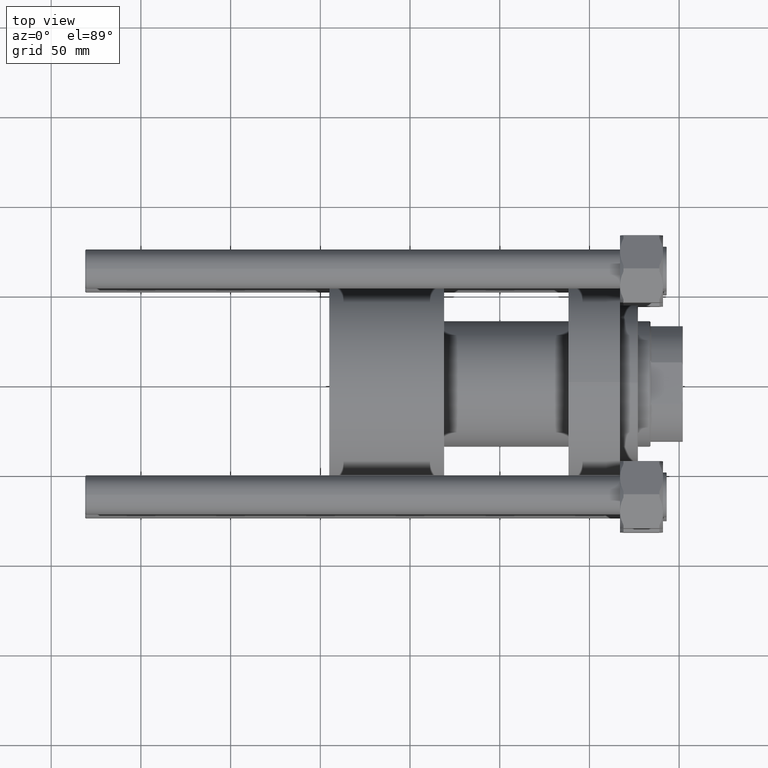
[diagram: clean part render]
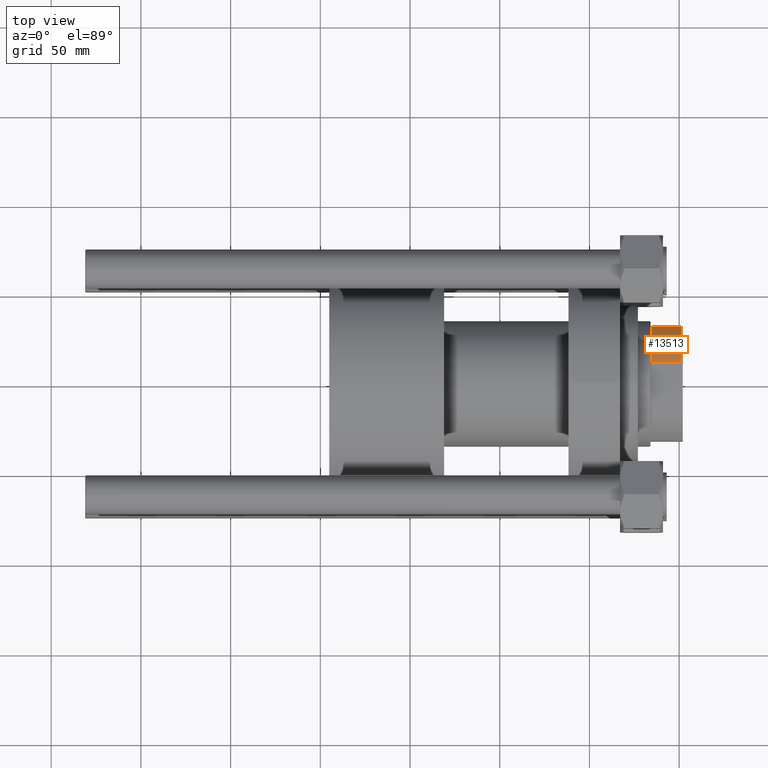
[diagram: same view with one face highlighted and labeled with its STEP entity id]
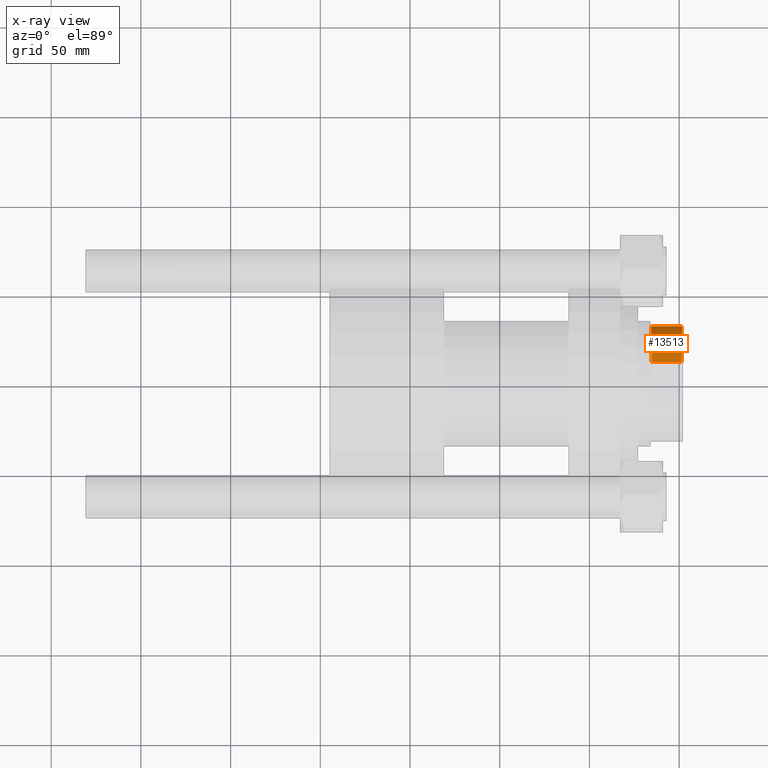
[diagram: x-ray of the same camera — body ghosted, the highlighted face saturated]
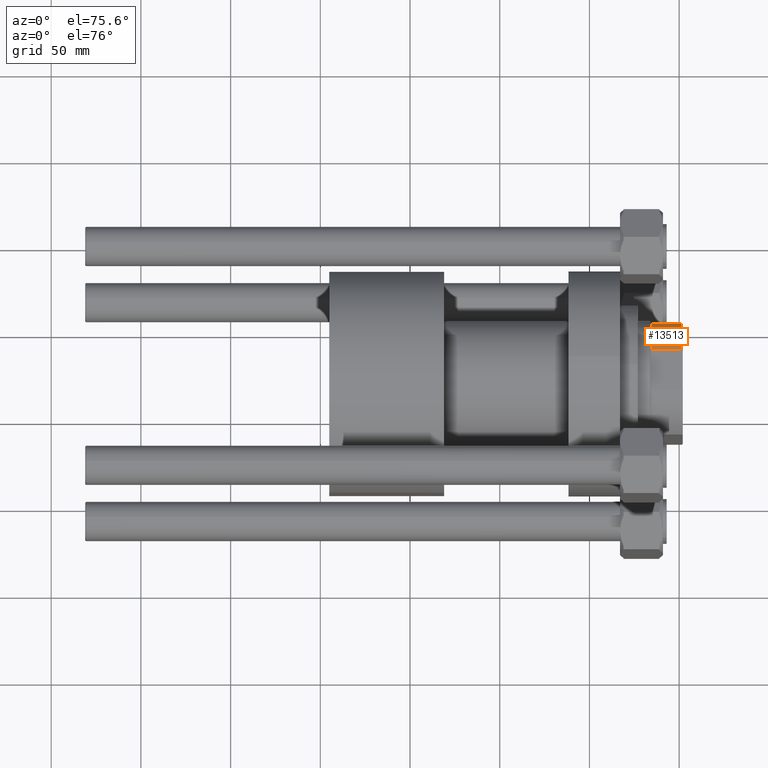
[diagram: same view with one face highlighted and labeled with its STEP entity id]
A machine part, top view. The second image highlights one B-rep face of the part: STEP entity #13513.
The next image is the same camera in x-ray: the body ghosted, the highlighted face saturated — about 0% of this face is hidden behind the body in this view.
A second angle (auxiliary view) of the same face is appended — the face is thin or edge-on in the first view.
In plain terms, the highlighted cylindrical surface (partial cylindrical patch) has radius 34 mm, axis along (1, 0, -0).
Its self-contained STEP definition (entity closure, byte-faithful):
#2404 = CARTESIAN_POINT ( 'NONE',  ( 0.000000000000000000, 0.000000000000000000, 196.4999999999997726 ) ) ;
#2664 = DIRECTION ( 'NONE',  ( 1.000000000000000000, 0.000000000000000000, 0.000000000000000000 ) ) ;
#4426 = ORIENTED_EDGE ( 'NONE', *, *, #38629, .T. ) ;
#6613 = ORIENTED_EDGE ( 'NONE', *, *, #25395, .T. ) ;
#6798 = AXIS2_PLACEMENT_3D ( 'NONE', #37903, #14757, #31029 ) ;
#7279 = DIRECTION ( 'NONE',  ( -0.000000000000000000, -0.000000000000000000, 1.000000000000000000 ) ) ;
#8952 = EDGE_CURVE ( 'NONE', #21911, #9690, #36712, .T. ) ;
#9690 = VERTEX_POINT ( 'NONE', #9800 ) ;
#9800 = CARTESIAN_POINT ( 'NONE',  ( -31.99999999999999289, -11.48912529307609454, 196.4999999999997442 ) ) ;
#9905 = DIRECTION ( 'NONE',  ( -0.000000000000000000, -0.000000000000000000, 1.000000000000000000 ) ) ;
#11443 = FACE_OUTER_BOUND ( 'NONE', #47901, .T. ) ;
#12235 = VECTOR ( 'NONE', #7279, 1000.000000000000000 ) ;
#13513 = ADVANCED_FACE ( 'NONE', ( #11443 ), #34580, .T. ) ;
#14757 = DIRECTION ( 'NONE',  ( -0.000000000000000000, -0.000000000000000000, 1.000000000000000000 ) ) ;
#18213 = ORIENTED_EDGE ( 'NONE', *, *, #8952, .T. ) ;
#19167 = DIRECTION ( 'NONE',  ( -1.000000000000000000, 0.000000000000000000, 0.000000000000000000 ) ) ;
#21102 = LINE ( 'NONE', #48044, #42926 ) ;
#21698 = CIRCLE ( 'NONE', #24149, 34.00000000000000000 ) ;
#21911 = VERTEX_POINT ( 'NONE', #43799 ) ;
#23848 = CARTESIAN_POINT ( 'NONE',  ( -31.99999999999999289, -11.48912529307609454, 179.5000000000000284 ) ) ;
#24149 = AXIS2_PLACEMENT_3D ( 'NONE', #38258, #37998, #19167 ) ;
#25395 = EDGE_CURVE ( 'NONE', #44768, #25818, #21698, .T. ) ;
#25818 = VERTEX_POINT ( 'NONE', #36184 ) ;
#31029 = DIRECTION ( 'NONE',  ( 1.000000000000000000, 0.000000000000000000, 0.000000000000000000 ) ) ;
#32958 = EDGE_CURVE ( 'NONE', #44768, #9690, #21102, .T. ) ;
#33727 = CARTESIAN_POINT ( 'NONE',  ( -11.48912529307606256, -32.00000000000000000, -0.001000000000001000089 ) ) ;
#34580 = CYLINDRICAL_SURFACE ( 'NONE', #6798, 34.00000000000000000 ) ;
#36184 = CARTESIAN_POINT ( 'NONE',  ( -11.48912529307606256, -32.00000000000000000, 179.5000000000000284 ) ) ;
#36712 = CIRCLE ( 'NONE', #49702, 34.00000000000000000 ) ;
#37523 = DIRECTION ( 'NONE',  ( -0.000000000000000000, -0.000000000000000000, -1.000000000000000000 ) ) ;
#37556 = LINE ( 'NONE', #33727, #12235 ) ;
#37903 = CARTESIAN_POINT ( 'NONE',  ( 0.000000000000000000, 0.000000000000000000, -0.001000000000001000089 ) ) ;
#37998 = DIRECTION ( 'NONE',  ( -0.000000000000000000, -0.000000000000000000, 1.000000000000000000 ) ) ;
#38258 = CARTESIAN_POINT ( 'NONE',  ( 0.000000000000000000, 0.000000000000000000, 179.5000000000000284 ) ) ;
#38629 = EDGE_CURVE ( 'NONE', #25818, #21911, #37556, .T. ) ;
#42926 = VECTOR ( 'NONE', #9905, 1000.000000000000000 ) ;
#43799 = CARTESIAN_POINT ( 'NONE',  ( -11.48912529307606256, -32.00000000000000000, 196.4999999999997442 ) ) ;
#44768 = VERTEX_POINT ( 'NONE', #23848 ) ;
#47901 = EDGE_LOOP ( 'NONE', ( #4426, #18213, #49590, #6613 ) ) ;
#48044 = CARTESIAN_POINT ( 'NONE',  ( -31.99999999999999289, -11.48912529307609454, -0.001000000000001000089 ) ) ;
#49590 = ORIENTED_EDGE ( 'NONE', *, *, #32958, .F. ) ;
#49702 = AXIS2_PLACEMENT_3D ( 'NONE', #2404, #37523, #2664 ) ;